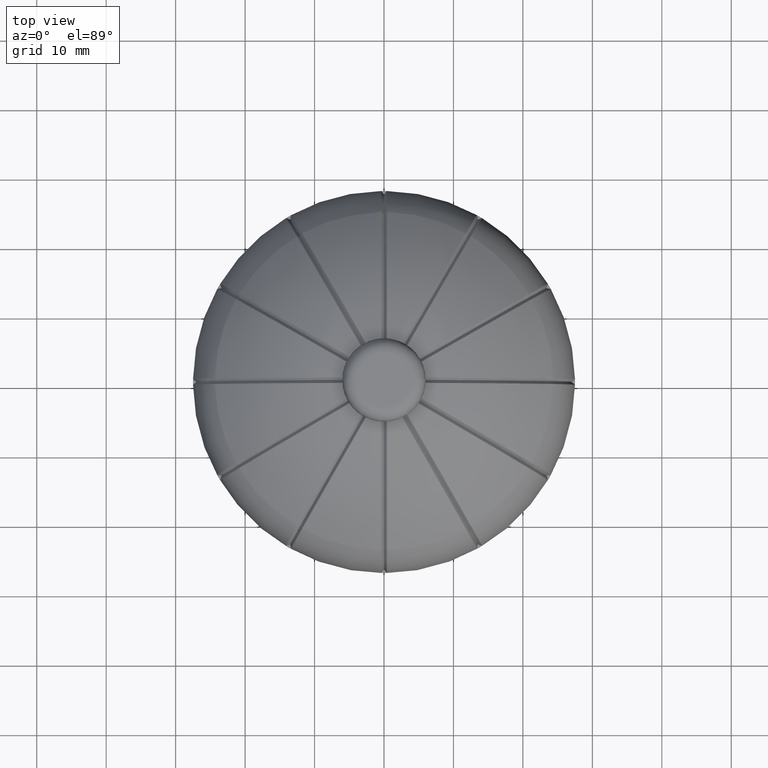
[diagram: clean part render]
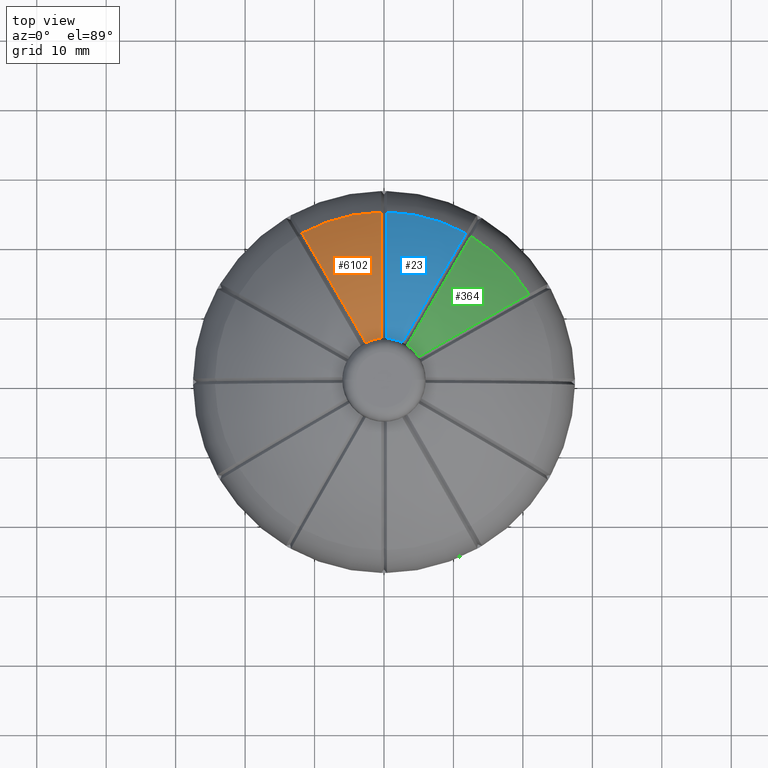
[diagram: same view with three faces highlighted in distinct colors, each labeled with its STEP entity id]
A machine part, top view with three faces highlighted in distinct colors.
Their STEP definitions:

[orange] entity #6102 — the highlighted spherical surface has radius 35.5865 mm.
#308 = DIRECTION ( 'NONE',  ( -1.000000000000000000, 0.0000000000000000000, 0.0000000000000000000 ) ) ;
#393 = VERTEX_POINT ( 'NONE', #8540 ) ;
#567 = EDGE_CURVE ( 'NONE', #8753, #8977, #7642, .T. ) ;
#683 = DIRECTION ( 'NONE',  ( 0.0000000000000000000, 1.000000000000000000, 2.850873768216641700E-016 ) ) ;
#1424 = DIRECTION ( 'NONE',  ( -0.0000000000000000000, -0.0000000000000000000, 1.000000000000000000 ) ) ;
#1472 = SPHERICAL_SURFACE ( 'NONE', #5174, 35.58653846153846700 ) ;
#1562 = EDGE_CURVE ( 'NONE', #393, #7528, #9408, .T. ) ;
#1949 = EDGE_CURVE ( 'NONE', #8753, #3460, #13840, .T. ) ;
#2104 = CARTESIAN_POINT ( 'NONE',  ( -0.4174948011541473900, 5.999587079112371800, 33.48813007069023200 ) ) ;
#2450 = CARTESIAN_POINT ( 'NONE',  ( 0.0000000000000000000, 6.000000000000000900, 33.49054408070059500 ) ) ;
#2474 = CARTESIAN_POINT ( 'NONE',  ( 0.3615611037474301100, 0.2087474005770733600, -1.586538461538465700 ) ) ;
#2493 = EDGE_CURVE ( 'NONE', #7528, #8977, #3065, .T. ) ;
#2522 = DIRECTION ( 'NONE',  ( 0.0000000000000000000, 1.000000000000000000, 2.437331011910131300E-016 ) ) ;
#2656 = AXIS2_PLACEMENT_3D ( 'NONE', #5220, #12840, #6320 ) ;
#2873 = ORIENTED_EDGE ( 'NONE', *, *, #7242, .T. ) ;
#2877 = EDGE_CURVE ( 'NONE', #3460, #10336, #8007, .T. ) ;
#3065 = CIRCLE ( 'NONE', #2656, 35.58653846153846000 ) ;
#3164 = DIRECTION ( 'NONE',  ( -1.000000000000000000, -0.0000000000000000000, -0.0000000000000000000 ) ) ;
#3460 = VERTEX_POINT ( 'NONE', #2104 ) ;
#3577 = DIRECTION ( 'NONE',  ( 0.5000000000000008900, -0.8660254037844380400, -1.779374095482564000E-015 ) ) ;
#3820 = ORIENTED_EDGE ( 'NONE', *, *, #2877, .T. ) ;
#4621 = ORIENTED_EDGE ( 'NONE', *, *, #567, .F. ) ;
#4817 = ORIENTED_EDGE ( 'NONE', *, *, #1562, .T. ) ;
#5039 = CARTESIAN_POINT ( 'NONE',  ( -2.638232435808757900, 5.404542223305275800, 33.48813007069022500 ) ) ;
#5174 = AXIS2_PLACEMENT_3D ( 'NONE', #7961, #9079, #2522 ) ;
#5220 = CARTESIAN_POINT ( 'NONE',  ( -1.923625374469067800E-014, 2.914532813225816900E-014, -1.586538461538472100 ) ) ;
#5972 = AXIS2_PLACEMENT_3D ( 'NONE', #9095, #1424, #308 ) ;
#6102 = ADVANCED_FACE ( 'NONE', ( #13455 ), #1472, .T. ) ;
#6320 = DIRECTION ( 'NONE',  ( 0.8660254037844381500, 0.5000000000000011100, 0.0000000000000000000 ) ) ;
#6549 = CARTESIAN_POINT ( 'NONE',  ( -3.000000000000008000, 5.196152422706631100, 33.49054408070059500 ) ) ;
#6878 = AXIS2_PLACEMENT_3D ( 'NONE', #2474, #10121, #3577 ) ;
#7242 = EDGE_CURVE ( 'NONE', #10336, #393, #11408, .T. ) ;
#7268 = DIRECTION ( 'NONE',  ( -0.0000000000000000000, -2.423510738497009600E-016, 1.000000000000000000 ) ) ;
#7528 = VERTEX_POINT ( 'NONE', #5039 ) ;
#7642 = CIRCLE ( 'NONE', #5972, 6.000000000000000900 ) ;
#7733 = EDGE_LOOP ( 'NONE', ( #2873, #4817, #8555, #4621, #13873, #3820 ) ) ;
#7961 = CARTESIAN_POINT ( 'NONE',  ( 0.0000000000000000000, -4.172840700833061600E-015, -1.586538461538465700 ) ) ;
#8007 = CIRCLE ( 'NONE', #12901, 35.58408939070333300 ) ;
#8026 = DIRECTION ( 'NONE',  ( 0.0000000000000000000, -0.9856840271256814800, 0.1686030802485501700 ) ) ;
#8540 = CARTESIAN_POINT ( 'NONE',  ( -11.80641545260530200, 21.28430102148693900, 24.37475587949486700 ) ) ;
#8555 = ORIENTED_EDGE ( 'NONE', *, *, #2493, .T. ) ;
#8556 = CARTESIAN_POINT ( 'NONE',  ( 0.0000000000000000000, 3.451340294126700400E-014, -1.586538461538472300 ) ) ;
#8753 = VERTEX_POINT ( 'NONE', #2450 ) ;
#8977 = VERTEX_POINT ( 'NONE', #6549 ) ;
#9079 = DIRECTION ( 'NONE',  ( -1.000000000000000000, 0.0000000000000000000, 0.0000000000000000000 ) ) ;
#9095 = CARTESIAN_POINT ( 'NONE',  ( 0.0000000000000000000, 0.0000000000000000000, 33.49054408069388700 ) ) ;
#9408 = CIRCLE ( 'NONE', #6878, 35.58408939070334000 ) ;
#9707 = CARTESIAN_POINT ( 'NONE',  ( -0.4174948011541395600, -4.172840700833061600E-015, -1.586538461538465700 ) ) ;
#10121 = DIRECTION ( 'NONE',  ( 0.8660254037844380400, 0.5000000000000010000, 1.211755369248508000E-016 ) ) ;
#10336 = VERTEX_POINT ( 'NONE', #11479 ) ;
#10815 = DIRECTION ( 'NONE',  ( 0.0000000000000000000, 0.0000000000000000000, -1.000000000000000000 ) ) ;
#11408 = CIRCLE ( 'NONE', #12667, 24.33953400977076200 ) ;
#11479 = CARTESIAN_POINT ( 'NONE',  ( -0.4174948011541529900, 24.33595311270541800, 24.37475587949487000 ) ) ;
#12661 = DIRECTION ( 'NONE',  ( 0.0000000000000000000, -0.1686030802485501400, -0.9856840271256812600 ) ) ;
#12667 = AXIS2_PLACEMENT_3D ( 'NONE', #13800, #7268, #683 ) ;
#12840 = DIRECTION ( 'NONE',  ( 0.4928420135628418000, -0.8536274075953892400, 0.1686030802485502200 ) ) ;
#12901 = AXIS2_PLACEMENT_3D ( 'NONE', #9707, #3164, #10815 ) ;
#13455 = FACE_OUTER_BOUND ( 'NONE', #7733, .T. ) ;
#13456 = AXIS2_PLACEMENT_3D ( 'NONE', #8556, #8026, #12661 ) ;
#13800 = CARTESIAN_POINT ( 'NONE',  ( 0.0000000000000000000, -1.046458826291065200E-014, 24.37475587949486000 ) ) ;
#13840 = CIRCLE ( 'NONE', #13456, 35.58653846153847400 ) ;
#13873 = ORIENTED_EDGE ( 'NONE', *, *, #1949, .T. ) ;

[blue] entity #23 — the highlighted spherical surface has radius 35.5865 mm.
#23 = ADVANCED_FACE ( 'NONE', ( #7816 ), #2007, .T. ) ;
#351 = DIRECTION ( 'NONE',  ( -1.000000000000000000, 0.0000000000000000000, 0.0000000000000000000 ) ) ;
#444 = CARTESIAN_POINT ( 'NONE',  ( 0.0000000000000000000, -1.046458826291065200E-014, 24.37475587949486000 ) ) ;
#950 = DIRECTION ( 'NONE',  ( 0.8660254037844451500, -0.4999999999999889000, 0.0000000000000000000 ) ) ;
#1241 = CARTESIAN_POINT ( 'NONE',  ( 0.4174948011541391700, -4.172840700833061600E-015, -1.586538461538465700 ) ) ;
#1362 = AXIS2_PLACEMENT_3D ( 'NONE', #8497, #1961, #9605 ) ;
#1458 = CIRCLE ( 'NONE', #7530, 24.33953400977076200 ) ;
#1561 = DIRECTION ( 'NONE',  ( -3.552713678800500900E-015, 1.000000000000000000, 2.850873768216641700E-016 ) ) ;
#1616 = CIRCLE ( 'NONE', #12235, 35.58408939070333300 ) ;
#1881 = ORIENTED_EDGE ( 'NONE', *, *, #9118, .T. ) ;
#1961 = DIRECTION ( 'NONE',  ( 0.0000000000000000000, -0.9856840271256814800, 0.1686030802485501700 ) ) ;
#2007 = SPHERICAL_SURFACE ( 'NONE', #7681, 35.58653846153846700 ) ;
#2377 = DIRECTION ( 'NONE',  ( 0.0000000000000000000, -8.881784197001252300E-016, 1.000000000000000000 ) ) ;
#2450 = CARTESIAN_POINT ( 'NONE',  ( 0.0000000000000000000, 6.000000000000000900, 33.49054408070059500 ) ) ;
#3402 = EDGE_CURVE ( 'NONE', #11241, #8753, #4601, .T. ) ;
#3555 = CIRCLE ( 'NONE', #9446, 6.000000000000000900 ) ;
#3562 = EDGE_CURVE ( 'NONE', #9357, #8753, #3555, .T. ) ;
#3786 = EDGE_CURVE ( 'NONE', #9357, #13001, #3919, .T. ) ;
#3864 = CARTESIAN_POINT ( 'NONE',  ( -0.3615611037474304500, 0.2087474005770668700, -1.586538461538465700 ) ) ;
#3897 = CIRCLE ( 'NONE', #7906, 35.58408939070334000 ) ;
#3919 = CIRCLE ( 'NONE', #13093, 35.58653846153846000 ) ;
#4601 = CIRCLE ( 'NONE', #1362, 35.58653846153847400 ) ;
#4981 = DIRECTION ( 'NONE',  ( 0.4999999999999889000, 0.8660254037844449200, -1.779374095482564000E-015 ) ) ;
#5295 = ORIENTED_EDGE ( 'NONE', *, *, #3562, .F. ) ;
#5948 = CARTESIAN_POINT ( 'NONE',  ( 0.4174948011541513800, 24.33595311270541800, 24.37475587949487000 ) ) ;
#6482 = CARTESIAN_POINT ( 'NONE',  ( 2.999999999999934300, 5.196152422706672900, 33.49054408070055900 ) ) ;
#6769 = CARTESIAN_POINT ( 'NONE',  ( 2.638232435808692200, 5.404542223305309500, 33.48813007069022500 ) ) ;
#6863 = ORIENTED_EDGE ( 'NONE', *, *, #10876, .T. ) ;
#6938 = DIRECTION ( 'NONE',  ( -0.0000000000000000000, -0.0000000000000000000, 1.000000000000000000 ) ) ;
#7109 = EDGE_CURVE ( 'NONE', #11874, #13849, #1458, .T. ) ;
#7529 = DIRECTION ( 'NONE',  ( -0.4928420135628297500, -0.8536274075953962400, 0.1686030802485503400 ) ) ;
#7530 = AXIS2_PLACEMENT_3D ( 'NONE', #444, #8116, #1561 ) ;
#7681 = AXIS2_PLACEMENT_3D ( 'NONE', #9124, #10209, #8006 ) ;
#7816 = FACE_OUTER_BOUND ( 'NONE', #9620, .T. ) ;
#7906 = AXIS2_PLACEMENT_3D ( 'NONE', #3864, #11518, #4981 ) ;
#8006 = DIRECTION ( 'NONE',  ( 0.0000000000000000000, 1.000000000000000000, 2.437331011910131300E-016 ) ) ;
#8116 = DIRECTION ( 'NONE',  ( -0.0000000000000000000, -2.423510738497009600E-016, 1.000000000000000000 ) ) ;
#8497 = CARTESIAN_POINT ( 'NONE',  ( 0.0000000000000000000, 3.451340294126700400E-014, -1.586538461538472300 ) ) ;
#8753 = VERTEX_POINT ( 'NONE', #2450 ) ;
#8922 = DIRECTION ( 'NONE',  ( 1.000000000000000000, 0.0000000000000000000, 0.0000000000000000000 ) ) ;
#9118 = EDGE_CURVE ( 'NONE', #13001, #11874, #3897, .T. ) ;
#9124 = CARTESIAN_POINT ( 'NONE',  ( 0.0000000000000000000, -4.172840700833061600E-015, -1.586538461538465700 ) ) ;
#9357 = VERTEX_POINT ( 'NONE', #6482 ) ;
#9446 = AXIS2_PLACEMENT_3D ( 'NONE', #13469, #6938, #351 ) ;
#9526 = CARTESIAN_POINT ( 'NONE',  ( 11.80641545260501200, 21.28430102148710300, 24.37475587949486700 ) ) ;
#9605 = DIRECTION ( 'NONE',  ( 0.0000000000000000000, -0.1686030802485501400, -0.9856840271256812600 ) ) ;
#9620 = EDGE_LOOP ( 'NONE', ( #11970, #1881, #14175, #6863, #10633, #5295 ) ) ;
#10209 = DIRECTION ( 'NONE',  ( -1.000000000000000000, 0.0000000000000000000, 0.0000000000000000000 ) ) ;
#10633 = ORIENTED_EDGE ( 'NONE', *, *, #3402, .T. ) ;
#10876 = EDGE_CURVE ( 'NONE', #13849, #11241, #1616, .T. ) ;
#11241 = VERTEX_POINT ( 'NONE', #13442 ) ;
#11518 = DIRECTION ( 'NONE',  ( -0.8660254037844450400, 0.4999999999999889500, 1.211755369248478700E-016 ) ) ;
#11874 = VERTEX_POINT ( 'NONE', #9526 ) ;
#11970 = ORIENTED_EDGE ( 'NONE', *, *, #3786, .T. ) ;
#12235 = AXIS2_PLACEMENT_3D ( 'NONE', #1241, #8922, #2377 ) ;
#13001 = VERTEX_POINT ( 'NONE', #6769 ) ;
#13093 = AXIS2_PLACEMENT_3D ( 'NONE', #14070, #7529, #950 ) ;
#13442 = CARTESIAN_POINT ( 'NONE',  ( 0.4174948011541473900, 5.999587079112371800, 33.48813007069023200 ) ) ;
#13469 = CARTESIAN_POINT ( 'NONE',  ( 0.0000000000000000000, 0.0000000000000000000, 33.49054408069388700 ) ) ;
#13849 = VERTEX_POINT ( 'NONE', #5948 ) ;
#14070 = CARTESIAN_POINT ( 'NONE',  ( 1.816757298109631300E-014, 2.729431875264225800E-014, -1.586538461538471900 ) ) ;
#14175 = ORIENTED_EDGE ( 'NONE', *, *, #7109, .T. ) ;

[green] entity #364 — the highlighted spherical surface has radius 35.5865 mm.
#262 = FACE_OUTER_BOUND ( 'NONE', #4956, .T. ) ;
#364 = ADVANCED_FACE ( 'NONE', ( #262 ), #13804, .T. ) ;
#711 = DIRECTION ( 'NONE',  ( 0.8660254037844450400, -0.4999999999999889500, -1.211755369248478700E-016 ) ) ;
#911 = DIRECTION ( 'NONE',  ( -1.000000000000000000, 0.0000000000000000000, 0.0000000000000000000 ) ) ;
#1138 = CIRCLE ( 'NONE', #3121, 35.58653846153846000 ) ;
#1164 = EDGE_CURVE ( 'NONE', #13006, #4156, #6129, .T. ) ;
#1166 = ORIENTED_EDGE ( 'NONE', *, *, #3017, .T. ) ;
#1364 = VERTEX_POINT ( 'NONE', #8492 ) ;
#1542 = CARTESIAN_POINT ( 'NONE',  ( 20.86680622033265900, 12.52953766010037400, 24.37475587949486300 ) ) ;
#1845 = CARTESIAN_POINT ( 'NONE',  ( 0.0000000000000000000, 0.0000000000000000000, 33.49054408069388700 ) ) ;
#2287 = AXIS2_PLACEMENT_3D ( 'NONE', #7485, #911, #14033 ) ;
#2310 = CARTESIAN_POINT ( 'NONE',  ( 1.816757298109631300E-014, 2.729431875264225800E-014, -1.586538461538471900 ) ) ;
#2835 = EDGE_CURVE ( 'NONE', #12190, #11305, #10911, .T. ) ;
#2957 = DIRECTION ( 'NONE',  ( -1.000000000000000000, 0.0000000000000000000, 0.0000000000000000000 ) ) ;
#3017 = EDGE_CURVE ( 'NONE', #11305, #9357, #1138, .T. ) ;
#3121 = AXIS2_PLACEMENT_3D ( 'NONE', #2310, #9946, #3406 ) ;
#3199 = EDGE_CURVE ( 'NONE', #1364, #13006, #5632, .T. ) ;
#3260 = ORIENTED_EDGE ( 'NONE', *, *, #3199, .T. ) ;
#3406 = DIRECTION ( 'NONE',  ( 0.8660254037844451500, -0.4999999999999889000, 0.0000000000000000000 ) ) ;
#3740 = DIRECTION ( 'NONE',  ( -0.5000000000000101000, 0.8660254037844328200, 2.098821865882782900E-016 ) ) ;
#3767 = CARTESIAN_POINT ( 'NONE',  ( 4.987047422151091400, 3.361354643303661000, 33.48813007069023900 ) ) ;
#4156 = VERTEX_POINT ( 'NONE', #1542 ) ;
#4533 = EDGE_CURVE ( 'NONE', #4156, #12190, #11444, .T. ) ;
#4809 = CARTESIAN_POINT ( 'NONE',  ( 0.0000000000000000000, -1.046458826291065200E-014, 24.37475587949486000 ) ) ;
#4820 = CARTESIAN_POINT ( 'NONE',  ( 2.943104913589708200E-014, 1.281918344031068100E-014, -1.586538461538471400 ) ) ;
#4956 = EDGE_LOOP ( 'NONE', ( #6457, #14166, #1166, #11979, #3260, #12849 ) ) ;
#5632 = CIRCLE ( 'NONE', #8255, 35.58653846153847400 ) ;
#5915 = DIRECTION ( 'NONE',  ( -1.065814103640150300E-014, 1.000000000000000000, 2.850873768216641700E-016 ) ) ;
#5924 = DIRECTION ( 'NONE',  ( 0.5000000000000102100, -0.8660254037844327100, 0.0000000000000000000 ) ) ;
#6129 = CIRCLE ( 'NONE', #7864, 35.58408939070334800 ) ;
#6249 = CIRCLE ( 'NONE', #8016, 6.000000000000000900 ) ;
#6457 = ORIENTED_EDGE ( 'NONE', *, *, #4533, .T. ) ;
#6482 = CARTESIAN_POINT ( 'NONE',  ( 2.999999999999934300, 5.196152422706672900, 33.49054408070055900 ) ) ;
#6706 = AXIS2_PLACEMENT_3D ( 'NONE', #4809, #12430, #5915 ) ;
#7294 = CARTESIAN_POINT ( 'NONE',  ( 0.3615611037474247300, -0.2087474005770718900, -1.586538461538465700 ) ) ;
#7485 = CARTESIAN_POINT ( 'NONE',  ( 0.0000000000000000000, -4.172840700833061600E-015, -1.586538461538465700 ) ) ;
#7864 = AXIS2_PLACEMENT_3D ( 'NONE', #11399, #3740, #10284 ) ;
#8016 = AXIS2_PLACEMENT_3D ( 'NONE', #1845, #9492, #2957 ) ;
#8255 = AXIS2_PLACEMENT_3D ( 'NONE', #4820, #12440, #5924 ) ;
#8386 = DIRECTION ( 'NONE',  ( -0.4999999999999889000, -0.8660254037844449200, 0.0000000000000000000 ) ) ;
#8492 = CARTESIAN_POINT ( 'NONE',  ( 5.196152422706600000, 3.000000000000062600, 33.49054408070055900 ) ) ;
#9357 = VERTEX_POINT ( 'NONE', #6482 ) ;
#9492 = DIRECTION ( 'NONE',  ( -0.0000000000000000000, -0.0000000000000000000, 1.000000000000000000 ) ) ;
#9946 = DIRECTION ( 'NONE',  ( -0.4928420135628297500, -0.8536274075953962400, 0.1686030802485503400 ) ) ;
#10284 = DIRECTION ( 'NONE',  ( 0.8660254037844328200, 0.5000000000000101000, 0.0000000000000000000 ) ) ;
#10911 = CIRCLE ( 'NONE', #12197, 35.58408939070334800 ) ;
#11305 = VERTEX_POINT ( 'NONE', #13498 ) ;
#11399 = CARTESIAN_POINT ( 'NONE',  ( -0.2087474005770800800, 0.3615611037474215600, -1.586538461538465700 ) ) ;
#11444 = CIRCLE ( 'NONE', #6706, 24.33953400977076200 ) ;
#11979 = ORIENTED_EDGE ( 'NONE', *, *, #12548, .F. ) ;
#12190 = VERTEX_POINT ( 'NONE', #12804 ) ;
#12197 = AXIS2_PLACEMENT_3D ( 'NONE', #7294, #711, #8386 ) ;
#12430 = DIRECTION ( 'NONE',  ( -0.0000000000000000000, -2.423510738497009600E-016, 1.000000000000000000 ) ) ;
#12440 = DIRECTION ( 'NONE',  ( -0.8536274075953840200, -0.4928420135628507300, 0.1686030802485503400 ) ) ;
#12548 = EDGE_CURVE ( 'NONE', #1364, #9357, #6249, .T. ) ;
#12804 = CARTESIAN_POINT ( 'NONE',  ( 12.52953766009986800, 20.86680622033296500, 24.37475587949486700 ) ) ;
#12849 = ORIENTED_EDGE ( 'NONE', *, *, #1164, .T. ) ;
#13006 = VERTEX_POINT ( 'NONE', #3767 ) ;
#13498 = CARTESIAN_POINT ( 'NONE',  ( 3.361354643303546400, 4.987047422151165100, 33.48813007069023200 ) ) ;
#13804 = SPHERICAL_SURFACE ( 'NONE', #2287, 35.58653846153846700 ) ;
#14033 = DIRECTION ( 'NONE',  ( 0.0000000000000000000, 1.000000000000000000, 2.437331011910131300E-016 ) ) ;
#14166 = ORIENTED_EDGE ( 'NONE', *, *, #2835, .T. ) ;